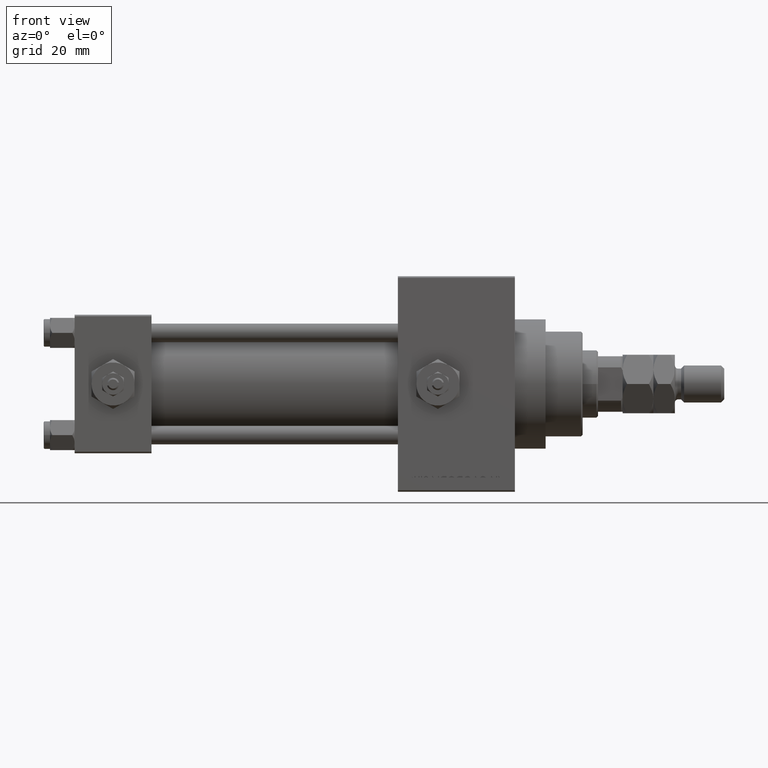
[diagram: clean part render]
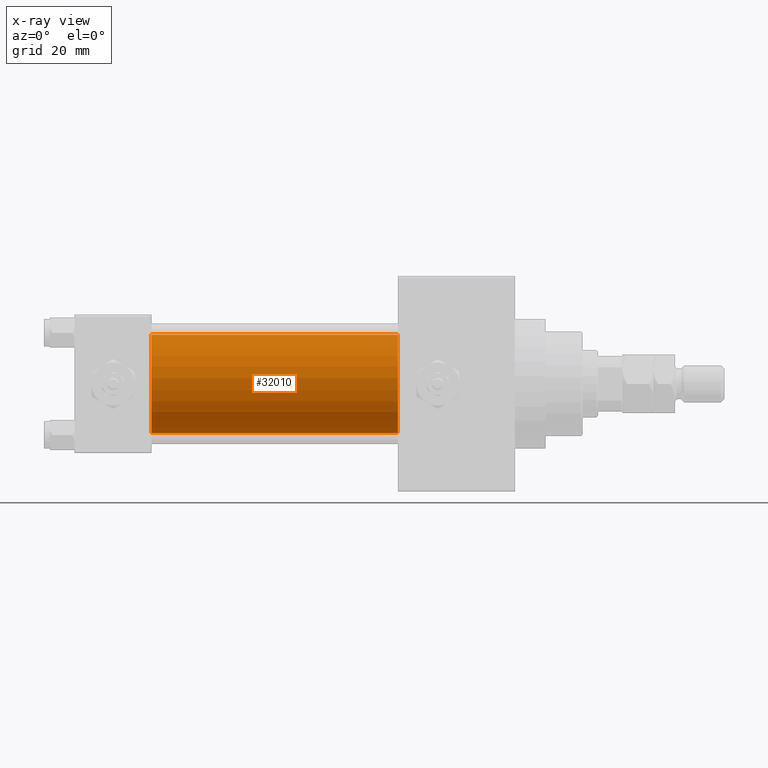
[diagram: x-ray — body ghosted, one internal face saturated and labeled with its STEP entity id]
A machine part, front view, then the same camera in x-ray: the body is ghosted and one INTERNAL B-rep face — a face not visible from any outside direction — is saturated and labeled: STEP entity #32010.
In plain terms, the highlighted cylindrical surface (partial cylindrical patch) has radius 16 mm, axis along (-1, -0, -0).
Its self-contained STEP definition (entity closure, byte-faithful):
#508 = EDGE_LOOP ( 'NONE', ( #5169, #38719, #46805, #19237 ) ) ;
#5169 = ORIENTED_EDGE ( 'NONE', *, *, #36903, .T. ) ;
#5541 = CARTESIAN_POINT ( 'NONE',  ( 25.00000000000000000, -6.426503353294456087E-16, -16.00000000000000000 ) ) ;
#7630 = DIRECTION ( 'NONE',  ( 1.000000000000000000, 0.000000000000000000, 0.000000000000000000 ) ) ;
#9932 = VERTEX_POINT ( 'NONE', #5541 ) ;
#10657 = CARTESIAN_POINT ( 'NONE',  ( 105.0000000000000142, -2.602085213965210642E-15, 16.00000000000000000 ) ) ;
#10852 = CARTESIAN_POINT ( 'NONE',  ( 105.0000000000000142, -6.426503353294456087E-16, -16.00000000000000000 ) ) ;
#12020 = CYLINDRICAL_SURFACE ( 'NONE', #44639, 16.00000000000000000 ) ;
#12277 = DIRECTION ( 'NONE',  ( 0.000000000000000000, 0.000000000000000000, 1.000000000000000000 ) ) ;
#13498 = DIRECTION ( 'NONE',  ( 0.000000000000000000, 0.000000000000000000, -1.000000000000000000 ) ) ;
#14345 = VECTOR ( 'NONE', #18002, 1000.000000000000000 ) ;
#15797 = VECTOR ( 'NONE', #21912, 1000.000000000000000 ) ;
#16331 = CARTESIAN_POINT ( 'NONE',  ( 105.0000000000000142, -2.602085213965210642E-15, 0.000000000000000000 ) ) ;
#18002 = DIRECTION ( 'NONE',  ( -1.000000000000000000, -0.000000000000000000, -0.000000000000000000 ) ) ;
#18877 = EDGE_CURVE ( 'NONE', #41118, #9932, #25928, .T. ) ;
#19237 = ORIENTED_EDGE ( 'NONE', *, *, #27090, .F. ) ;
#19952 = CARTESIAN_POINT ( 'NONE',  ( 105.0000000000000142, -2.602085213965210642E-15, 0.000000000000000000 ) ) ;
#20386 = EDGE_CURVE ( 'NONE', #32534, #9932, #49582, .T. ) ;
#20680 = DIRECTION ( 'NONE',  ( 1.000000000000000000, 0.000000000000000000, 0.000000000000000000 ) ) ;
#21912 = DIRECTION ( 'NONE',  ( -1.000000000000000000, -0.000000000000000000, -0.000000000000000000 ) ) ;
#24053 = DIRECTION ( 'NONE',  ( -1.000000000000000000, -0.000000000000000000, -0.000000000000000000 ) ) ;
#25928 = LINE ( 'NONE', #45173, #14345 ) ;
#26601 = DIRECTION ( 'NONE',  ( 0.000000000000000000, 0.000000000000000000, -1.000000000000000000 ) ) ;
#27090 = EDGE_CURVE ( 'NONE', #30137, #32534, #33201, .T. ) ;
#27422 = AXIS2_PLACEMENT_3D ( 'NONE', #46844, #7630, #26601 ) ;
#30137 = VERTEX_POINT ( 'NONE', #40074 ) ;
#30700 = AXIS2_PLACEMENT_3D ( 'NONE', #16331, #20680, #13498 ) ;
#32010 = ADVANCED_FACE ( 'NONE', ( #35856 ), #12020, .F. ) ;
#32534 = VERTEX_POINT ( 'NONE', #50552 ) ;
#33201 = LINE ( 'NONE', #10657, #15797 ) ;
#35856 = FACE_OUTER_BOUND ( 'NONE', #508, .T. ) ;
#36903 = EDGE_CURVE ( 'NONE', #30137, #41118, #49572, .T. ) ;
#38719 = ORIENTED_EDGE ( 'NONE', *, *, #18877, .T. ) ;
#40074 = CARTESIAN_POINT ( 'NONE',  ( 105.0000000000000142, -2.602085213965210642E-15, 16.00000000000000000 ) ) ;
#41118 = VERTEX_POINT ( 'NONE', #10852 ) ;
#44639 = AXIS2_PLACEMENT_3D ( 'NONE', #19952, #24053, #12277 ) ;
#45173 = CARTESIAN_POINT ( 'NONE',  ( 105.0000000000000142, -6.426503353294456087E-16, -16.00000000000000000 ) ) ;
#46805 = ORIENTED_EDGE ( 'NONE', *, *, #20386, .F. ) ;
#46844 = CARTESIAN_POINT ( 'NONE',  ( 25.00000000000000000, -2.602085213965210642E-15, 0.000000000000000000 ) ) ;
#49572 = CIRCLE ( 'NONE', #30700, 16.00000000000000000 ) ;
#49582 = CIRCLE ( 'NONE', #27422, 16.00000000000000000 ) ;
#50552 = CARTESIAN_POINT ( 'NONE',  ( 25.00000000000000000, -2.602085213965210642E-15, 16.00000000000000000 ) ) ;